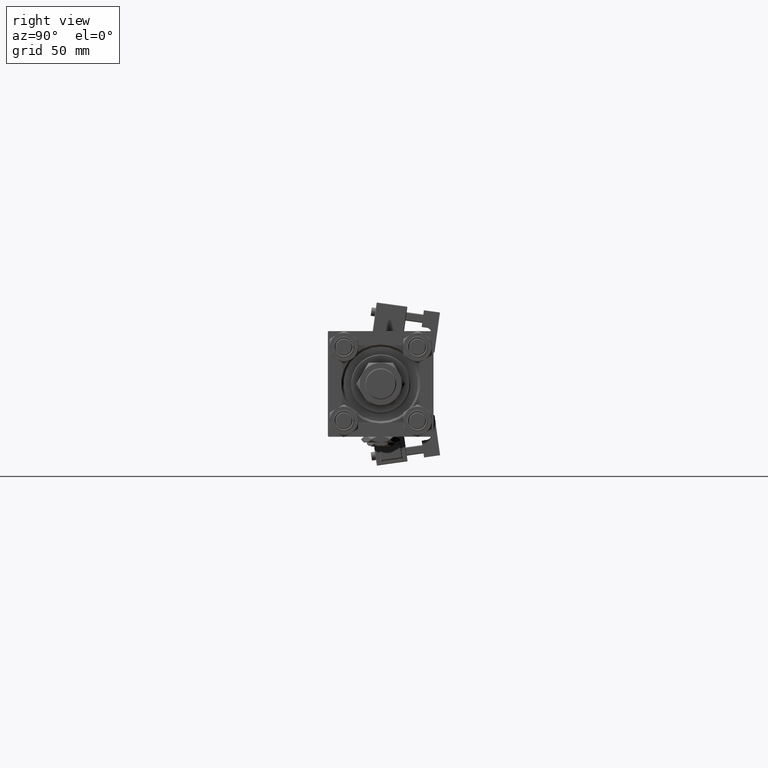
[diagram: clean part render]
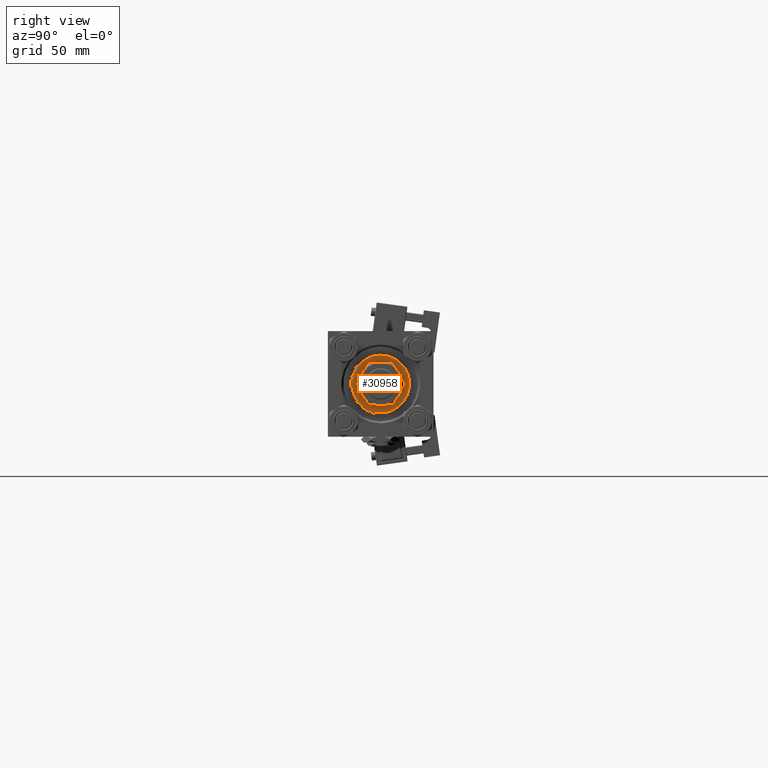
[diagram: same view with one face highlighted and labeled with its STEP entity id]
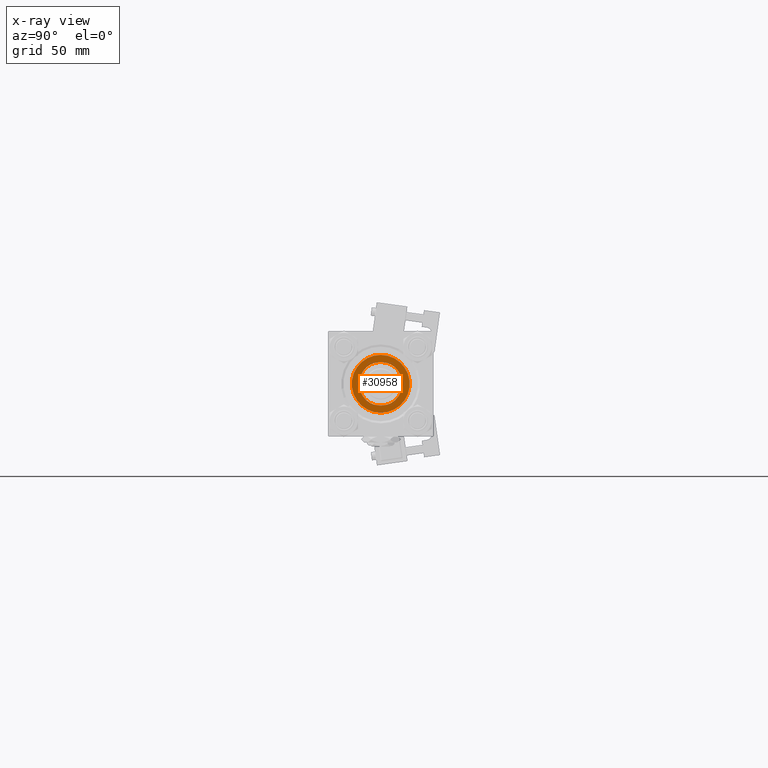
[diagram: x-ray of the same camera — body ghosted, the highlighted face saturated]
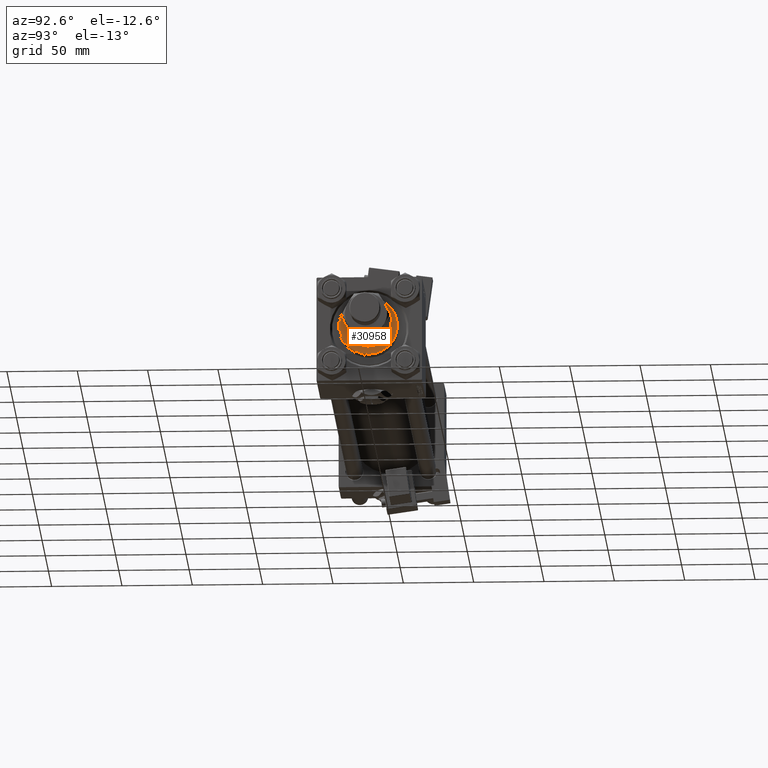
[diagram: same view with one face highlighted and labeled with its STEP entity id]
A machine part, right view. The second image highlights one B-rep face of the part: STEP entity #30958.
The next image is the same camera in x-ray: the body ghosted, the highlighted face saturated — about 0% of this face is hidden behind the body in this view.
A second angle (auxiliary view) of the same face is appended — the face is thin or edge-on in the first view.
In plain terms, the highlighted planar face has unit normal (1, 0, -0).
Its self-contained STEP definition (entity closure, byte-faithful):
#4734 = VERTEX_POINT ( 'NONE', #32127 ) ;
#5504 = CARTESIAN_POINT ( 'NONE',  ( -20.49999999999999645, 0.000000000000000000, 37.69999999999999574 ) ) ;
#6950 = CIRCLE ( 'NONE', #49152, 15.50000000000000000 ) ;
#7227 = FACE_OUTER_BOUND ( 'NONE', #8607, .T. ) ;
#7271 = DIRECTION ( 'NONE',  ( 0.000000000000000000, 0.000000000000000000, 1.000000000000000000 ) ) ;
#8607 = EDGE_LOOP ( 'NONE', ( #25791, #28723 ) ) ;
#8933 = CARTESIAN_POINT ( 'NONE',  ( 0.000000000000000000, 0.000000000000000000, 37.69999999999999574 ) ) ;
#10347 = ORIENTED_EDGE ( 'NONE', *, *, #38089, .F. ) ;
#12607 = DIRECTION ( 'NONE',  ( 0.000000000000000000, 0.000000000000000000, 1.000000000000000000 ) ) ;
#13214 = VERTEX_POINT ( 'NONE', #42445 ) ;
#15698 = DIRECTION ( 'NONE',  ( 1.000000000000000000, 0.000000000000000000, -0.000000000000000000 ) ) ;
#15973 = CARTESIAN_POINT ( 'NONE',  ( 0.000000000000000000, 0.000000000000000000, 37.69999999999999574 ) ) ;
#16469 = ORIENTED_EDGE ( 'NONE', *, *, #20056, .F. ) ;
#20056 = EDGE_CURVE ( 'NONE', #29504, #4734, #35207, .T. ) ;
#20734 = PLANE ( 'NONE',  #22930 ) ;
#22930 = AXIS2_PLACEMENT_3D ( 'NONE', #15973, #28616, #15698 ) ;
#23672 = CARTESIAN_POINT ( 'NONE',  ( 0.000000000000000000, 0.000000000000000000, 37.69999999999999574 ) ) ;
#25230 = FACE_BOUND ( 'NONE', #36696, .T. ) ;
#25791 = ORIENTED_EDGE ( 'NONE', *, *, #39201, .T. ) ;
#25837 = AXIS2_PLACEMENT_3D ( 'NONE', #41587, #7271, #29997 ) ;
#28616 = DIRECTION ( 'NONE',  ( 0.000000000000000000, 0.000000000000000000, 1.000000000000000000 ) ) ;
#28723 = ORIENTED_EDGE ( 'NONE', *, *, #40966, .T. ) ;
#29504 = VERTEX_POINT ( 'NONE', #30717 ) ;
#29750 = DIRECTION ( 'NONE',  ( 1.000000000000000000, 0.000000000000000000, 0.000000000000000000 ) ) ;
#29997 = DIRECTION ( 'NONE',  ( 1.000000000000000000, 0.000000000000000000, 0.000000000000000000 ) ) ;
#30717 = CARTESIAN_POINT ( 'NONE',  ( -15.50000000000000000, 1.898202538678397557E-15, 37.69999999999999574 ) ) ;
#30958 = ADVANCED_FACE ( 'NONE', ( #25230, #7227 ), #20734, .T. ) ;
#31117 = VERTEX_POINT ( 'NONE', #5504 ) ;
#31720 = CARTESIAN_POINT ( 'NONE',  ( 0.000000000000000000, 0.000000000000000000, 37.69999999999999574 ) ) ;
#32127 = CARTESIAN_POINT ( 'NONE',  ( 15.50000000000000000, 0.000000000000000000, 37.69999999999999574 ) ) ;
#32271 = DIRECTION ( 'NONE',  ( 1.000000000000000000, 0.000000000000000000, 0.000000000000000000 ) ) ;
#35207 = CIRCLE ( 'NONE', #38761, 15.50000000000000000 ) ;
#35927 = DIRECTION ( 'NONE',  ( 0.000000000000000000, 0.000000000000000000, 1.000000000000000000 ) ) ;
#36696 = EDGE_LOOP ( 'NONE', ( #10347, #16469 ) ) ;
#38089 = EDGE_CURVE ( 'NONE', #4734, #29504, #6950, .T. ) ;
#38761 = AXIS2_PLACEMENT_3D ( 'NONE', #23672, #40813, #44204 ) ;
#39201 = EDGE_CURVE ( 'NONE', #31117, #13214, #46493, .T. ) ;
#40813 = DIRECTION ( 'NONE',  ( 0.000000000000000000, 0.000000000000000000, 1.000000000000000000 ) ) ;
#40966 = EDGE_CURVE ( 'NONE', #13214, #31117, #41449, .T. ) ;
#41449 = CIRCLE ( 'NONE', #52283, 20.49999999999999645 ) ;
#41587 = CARTESIAN_POINT ( 'NONE',  ( 0.000000000000000000, 0.000000000000000000, 37.69999999999999574 ) ) ;
#42445 = CARTESIAN_POINT ( 'NONE',  ( 20.49999999999999645, 2.541142108230757480E-15, 37.69999999999999574 ) ) ;
#44204 = DIRECTION ( 'NONE',  ( 1.000000000000000000, 0.000000000000000000, 0.000000000000000000 ) ) ;
#46493 = CIRCLE ( 'NONE', #25837, 20.49999999999999645 ) ;
#49152 = AXIS2_PLACEMENT_3D ( 'NONE', #31720, #35927, #32271 ) ;
#52283 = AXIS2_PLACEMENT_3D ( 'NONE', #8933, #12607, #29750 ) ;